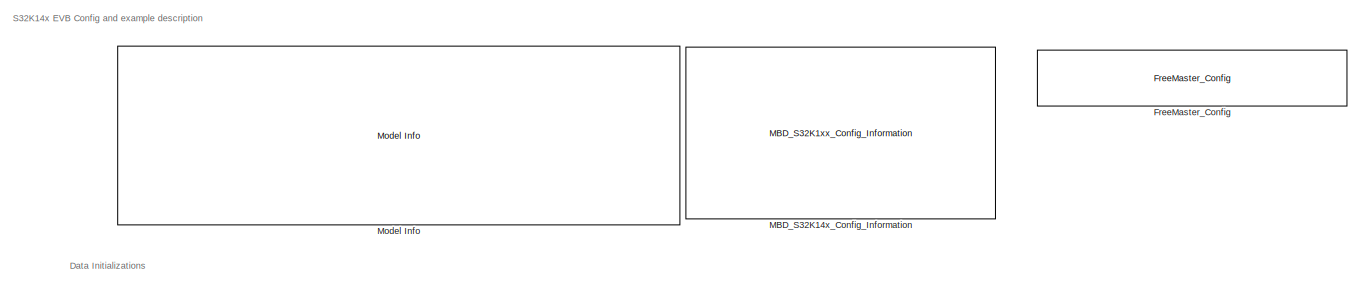
[diagram: root canvas - part 1/11, top center region]
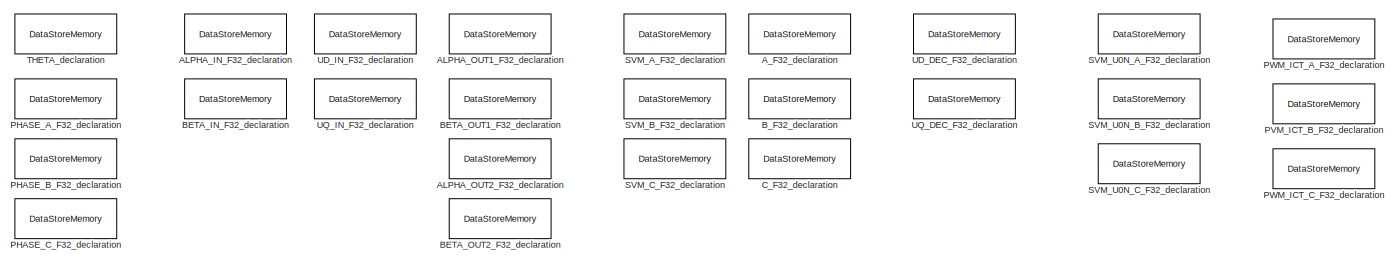
[diagram: root canvas - part 2/11, top center region]
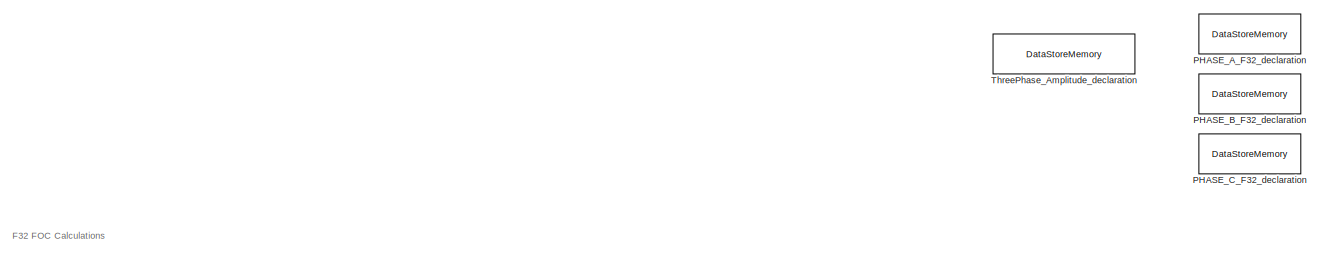
[diagram: root canvas - part 3/11, top left region]
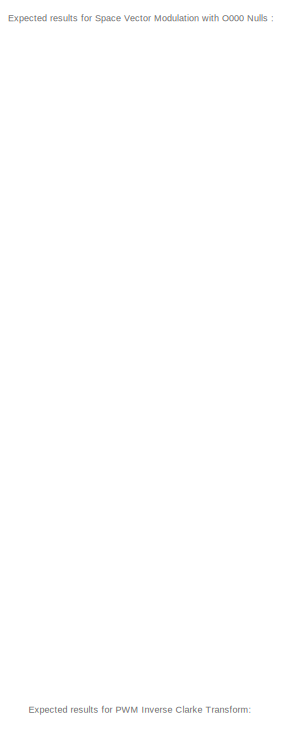
[diagram: root canvas - part 4/11, middle right region]
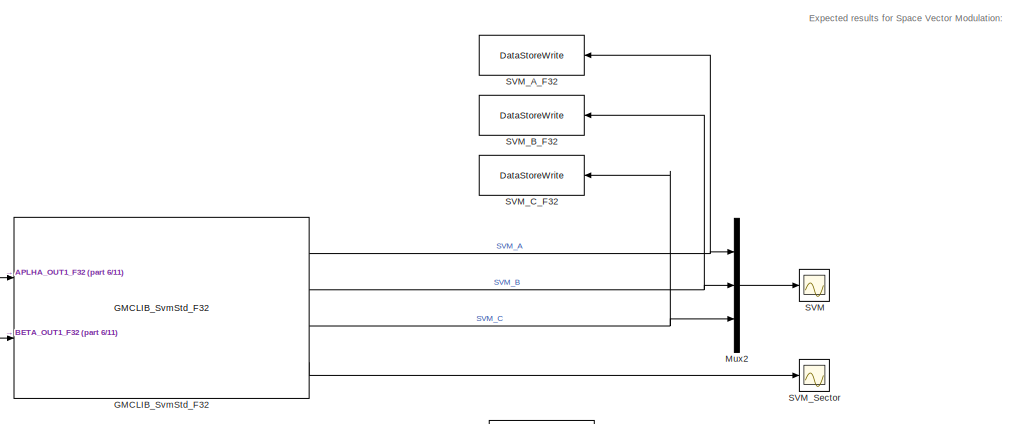
[diagram: root canvas - part 5/11, central region]
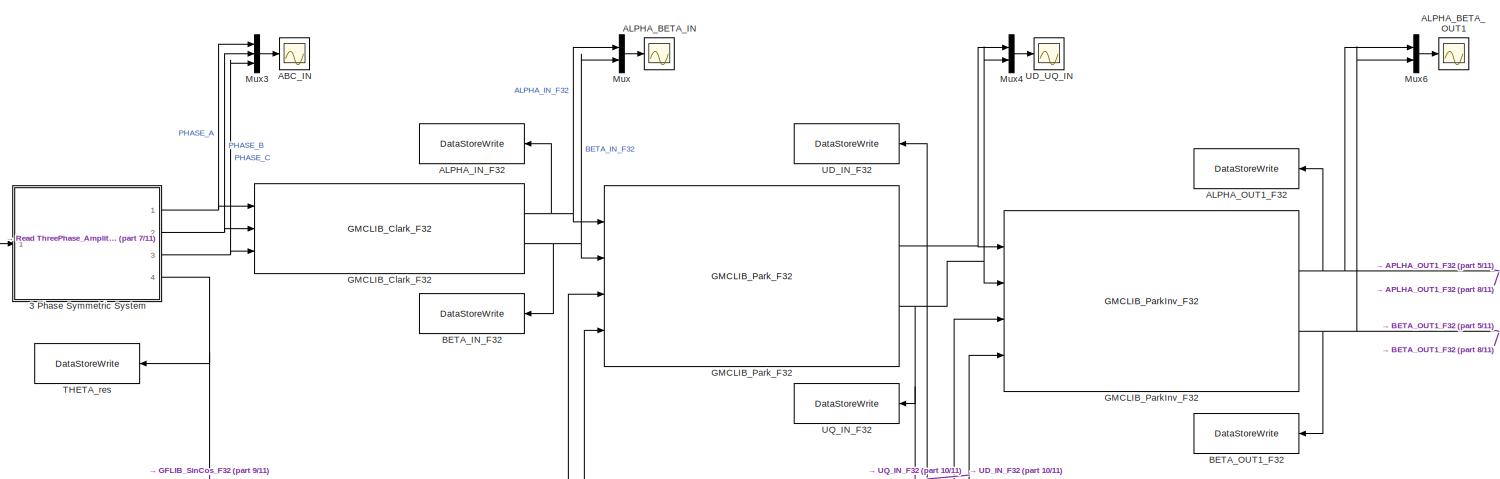
[diagram: root canvas - part 6/11, middle left region]
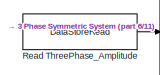
[diagram: root canvas - part 7/11, middle left region]
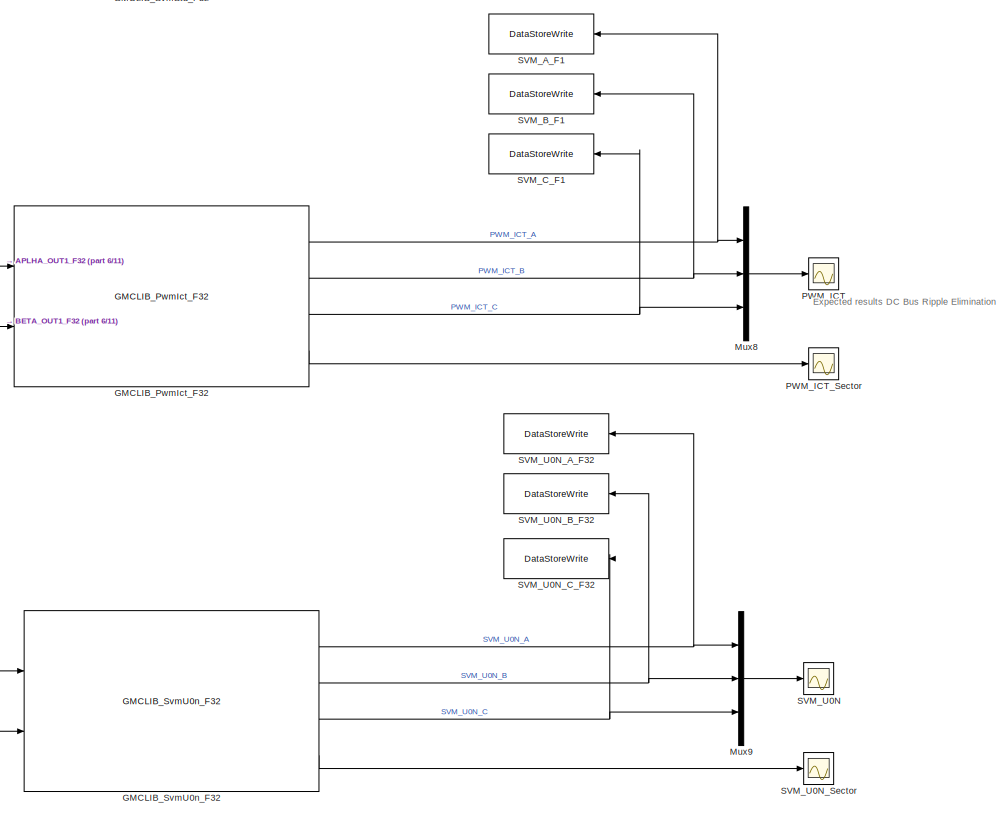
[diagram: root canvas - part 8/11, central region]
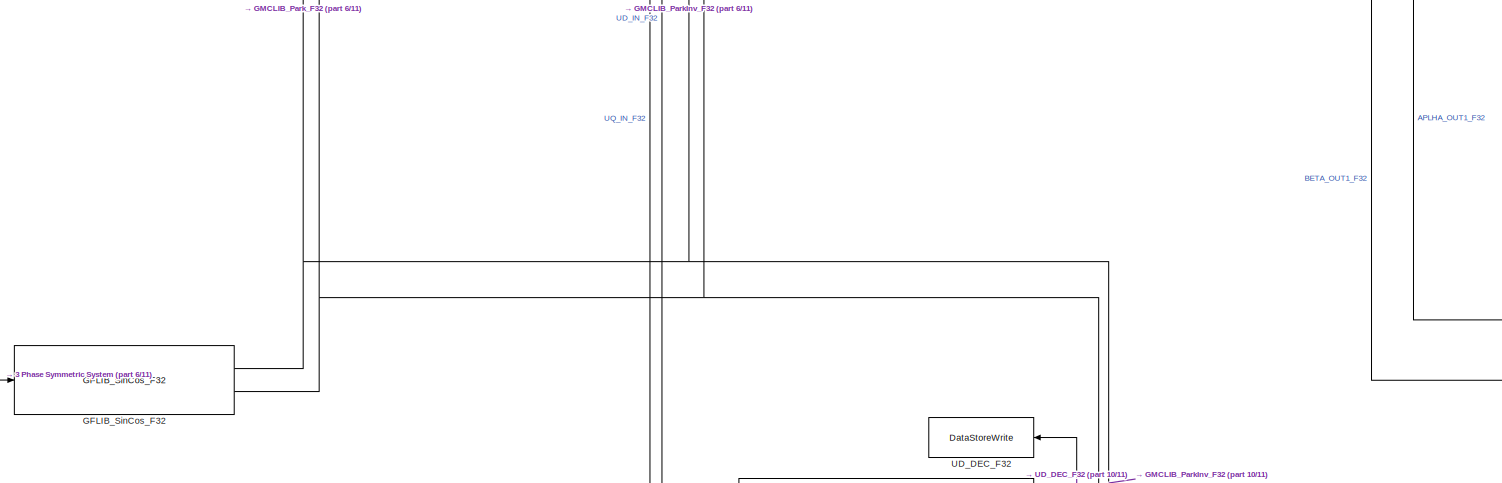
[diagram: root canvas - part 9/11, middle left region]
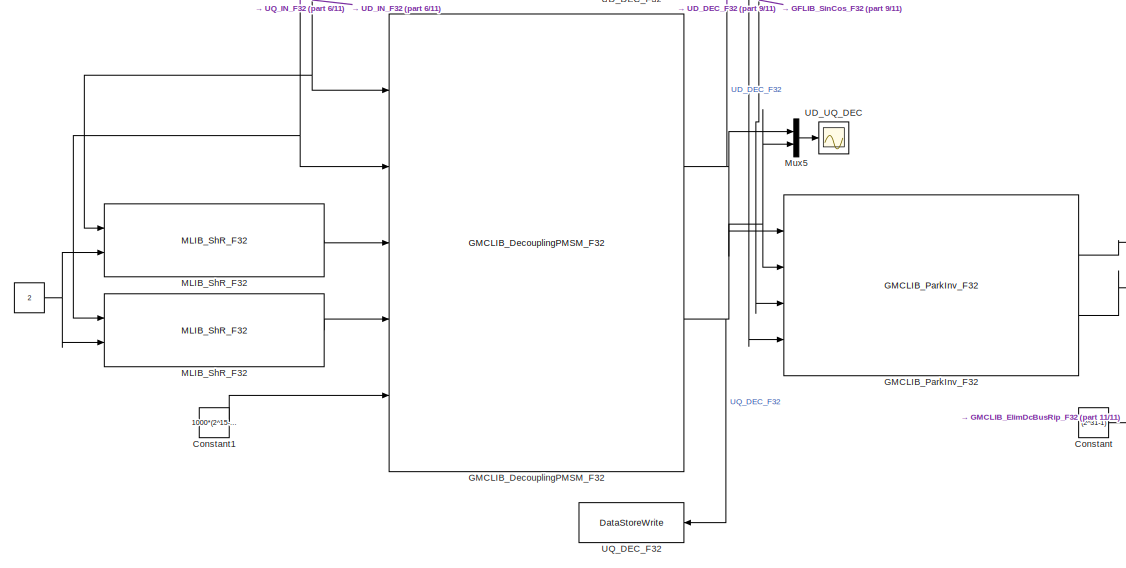
[diagram: root canvas - part 10/11, bottom center region]
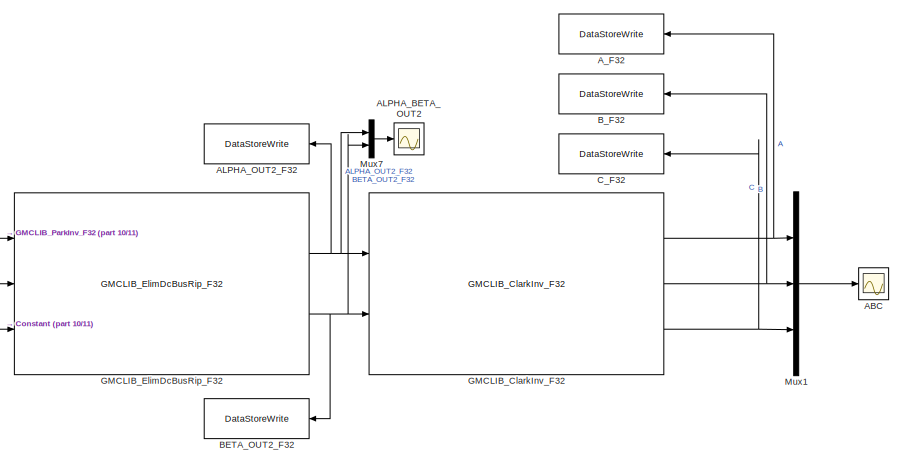
[diagram: root canvas - part 11/11, bottom center region]
MODEL ammclib_gmclib_foc_F32_s32k14x
KIND model
CONFIG InitFcn = mbd_s32k_consistency_checks(bdroot(gcs));
BLOCK [Constant]  
  OutDataTypeStr = Inherit: Inherit via back propagation
  SID = 1072
  Value = 2
BLOCK [DataStoreRead]  Read ThreePhase_Amplitude
  DataStoreName = ThreePhase_Amplitude
  Ports = [0, 1]
  SID = 989
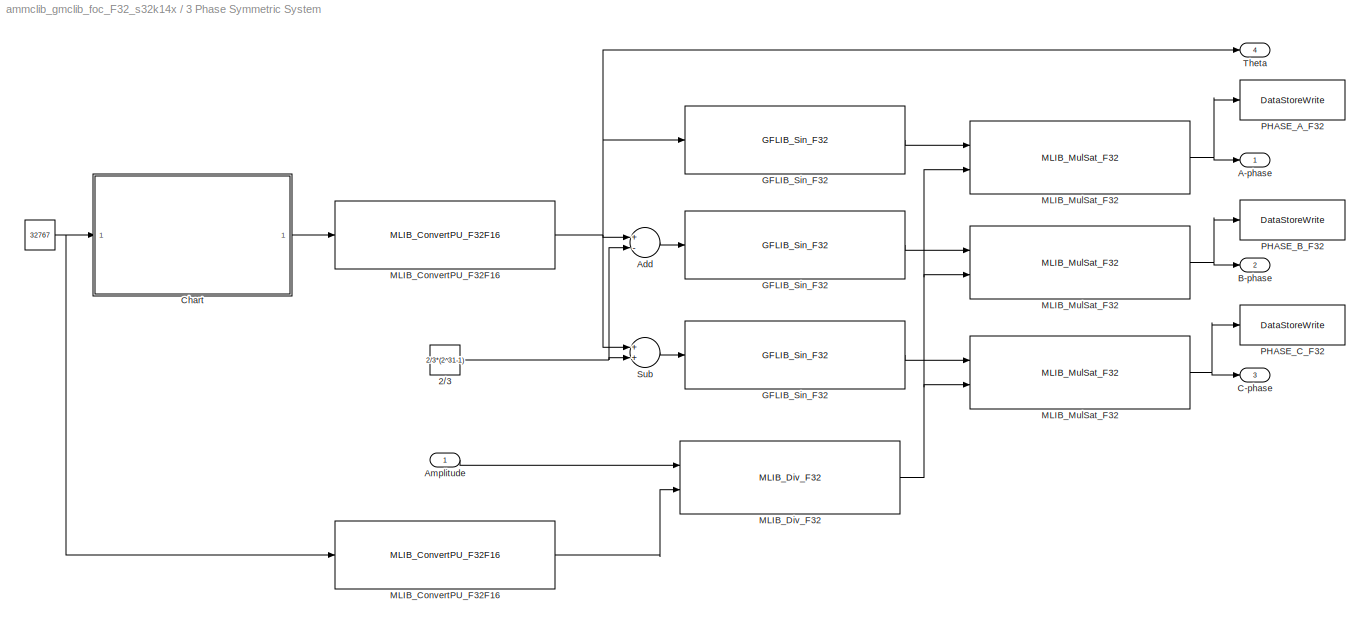
BLOCK [SubSystem] 3 Phase Symmetric System
  Ports = [1, 4]
  RequestExecContextInheritance = off
  SID = 990
  Variant = off
BLOCK [Constant] 3 Phase Symmetric System/ 
  OutDataTypeStr = int16
  SID = 1017
  Value = 32767
BLOCK [Constant] 3 Phase Symmetric System/2//3
  OutDataTypeStr = int32
  SID = 999
  Value = 2/3*(2^31-1)
BLOCK [Outport] 3 Phase Symmetric System/A-phase
  IconDisplay = Port number
  SID = 994
BLOCK [Sum] 3 Phase Symmetric System/Add
  InputSameDT = off
  Inputs = +-
  OutDataTypeStr = Inherit: Inherit via internal rule
  Ports = [2, 1]
  SID = 996
  SaturateOnIntegerOverflow = off
BLOCK [Inport] 3 Phase Symmetric System/Amplitude 
  IconDisplay = Port number
  SID = 991
BLOCK [Outport] 3 Phase Symmetric System/B-phase
  IconDisplay = Port number
  Port = 2
  SID = 995
BLOCK [Outport] 3 Phase Symmetric System/C-phase
  IconDisplay = Port number
  Port = 3
  SID = 997
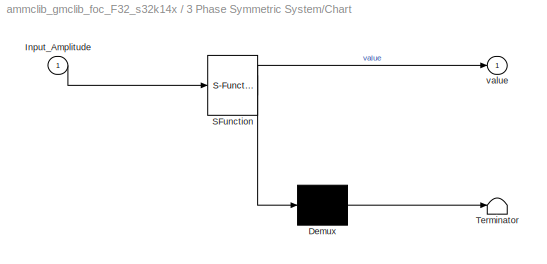
BLOCK [SubSystem] 3 Phase Symmetric System/Chart
  ErrorFcn = Stateflow.Translate.translate
  PermitHierarchicalResolution = ExplicitOnly
  Ports = [1, 1]
  RequestExecContextInheritance = off
  SFBlockType = Chart
  SID = 992
  TreatAsAtomicUnit = on
  Variant = off
BLOCK [Demux] 3 Phase Symmetric System/Chart/ Demux 
  Outputs = 1
  Ports = [1, 1]
  SID = 992::32
BLOCK [S-Function] 3 Phase Symmetric System/Chart/ SFunction 
  EnableBusSupport = on
  FunctionName = sf_sfun
  PortCounts = [1 2]
  Ports = [1, 2]
  SFcnIsStateOwnerBlock = off
  SFunctionDeploymentMode = off
  SID = 992::31
  Tag = Stateflow S-Function ammclib_gmclib_foc_F32_s32k14x 4
BLOCK [Terminator] 3 Phase Symmetric System/Chart/ Terminator 
  SID = 992::33
BLOCK [Inport] 3 Phase Symmetric System/Chart/Input_Amplitude
  IconDisplay = Port number
  SID = 992::30
BLOCK [Outport] 3 Phase Symmetric System/Chart/value
  IconDisplay = Port number
  SID = 992::5
BLOCK [Reference] 3 Phase Symmetric System/GFLIB_Sin_F32  REF=ammclib_bam_s32k14x/GFLIB/bam_f32/GFLIB_Sin_F32  (lib defined in mdl_f341c9dd7fd9)
  Ports = [1, 1]
  SID = 1012
  SourceBlock = ammclib_bam_s32k14x/GFLIB/bam_f32/GFLIB_Sin_F32
  SourceType = GFLIB_Sin_F32
BLOCK [Reference] 3 Phase Symmetric System/GFLIB_Sin_F32   REF=ammclib_bam_s32k14x/GFLIB/bam_f32/GFLIB_Sin_F32  (lib defined in mdl_f341c9dd7fd9)
  Ports = [1, 1]
  SID = 1021
  SourceBlock = ammclib_bam_s32k14x/GFLIB/bam_f32/GFLIB_Sin_F32
  SourceType = GFLIB_Sin_F32
BLOCK [Reference] 3 Phase Symmetric System/GFLIB_Sin_F32    REF=ammclib_bam_s32k14x/GFLIB/bam_f32/GFLIB_Sin_F32  (lib defined in mdl_f341c9dd7fd9)
  Ports = [1, 1]
  SID = 1022
  SourceBlock = ammclib_bam_s32k14x/GFLIB/bam_f32/GFLIB_Sin_F32
  SourceType = GFLIB_Sin_F32
BLOCK [Reference] 3 Phase Symmetric System/MLIB_ConvertPU_F32F16  REF=ammclib_bam_s32k14x/MLIB/bam_f32/MLIB_ConvertPU_F32F16  (lib defined in mdl_f341c9dd7fd9)
  Ports = [1, 1]
  SID = 1129
  SourceBlock = ammclib_bam_s32k14x/MLIB/bam_f32/MLIB_ConvertPU_F32F16
  SourceType = MLIB_ConvertPU_F32
BLOCK [Reference] 3 Phase Symmetric System/MLIB_ConvertPU_F32F16      REF=ammclib_bam_s32k14x/MLIB/bam_f32/MLIB_ConvertPU_F32F16  (lib defined in mdl_f341c9dd7fd9)
  Ports = [1, 1]
  SID = 1132
  SourceBlock = ammclib_bam_s32k14x/MLIB/bam_f32/MLIB_ConvertPU_F32F16
  SourceType = MLIB_ConvertPU_F32
BLOCK [Reference] 3 Phase Symmetric System/MLIB_Div_F32  REF=ammclib_bam_s32k14x/MLIB/bam_f32/MLIB_Div_F32  (lib defined in mdl_f341c9dd7fd9)
  Ports = [2, 1]
  SID = 1028
  SourceBlock = ammclib_bam_s32k14x/MLIB/bam_f32/MLIB_Div_F32
  SourceType = MLIB_Div_F32
BLOCK [Reference] 3 Phase Symmetric System/MLIB_MulSat_F32  REF=ammclib_bam_s32k14x/MLIB/bam_f32/MLIB_MulSat_F32  (lib defined in mdl_f341c9dd7fd9)
  Ports = [2, 1]
  SID = 1031
  SourceBlock = ammclib_bam_s32k14x/MLIB/bam_f32/MLIB_MulSat_F32
  SourceType = MLIB_MulSat_F32
BLOCK [Reference] 3 Phase Symmetric System/MLIB_MulSat_F32   REF=ammclib_bam_s32k14x/MLIB/bam_f32/MLIB_MulSat_F32  (lib defined in mdl_f341c9dd7fd9)
  Ports = [2, 1]
  SID = 1033
  SourceBlock = ammclib_bam_s32k14x/MLIB/bam_f32/MLIB_MulSat_F32
  SourceType = MLIB_MulSat_F32
BLOCK [Reference] 3 Phase Symmetric System/MLIB_MulSat_F32    REF=ammclib_bam_s32k14x/MLIB/bam_f32/MLIB_MulSat_F32  (lib defined in mdl_f341c9dd7fd9)
  Ports = [2, 1]
  SID = 1034
  SourceBlock = ammclib_bam_s32k14x/MLIB/bam_f32/MLIB_MulSat_F32
  SourceType = MLIB_MulSat_F32
BLOCK [DataStoreWrite] 3 Phase Symmetric System/PHASE_A_F32
  DataStoreName = PHASE_A_F32
  Ports = [1]
  SID = 1077
BLOCK [DataStoreWrite] 3 Phase Symmetric System/PHASE_B_F32
  DataStoreName = PHASE_B_F32
  Ports = [1]
  SID = 1078
BLOCK [DataStoreWrite] 3 Phase Symmetric System/PHASE_C_F32
  DataStoreName = PHASE_C_F32
  Ports = [1]
  SID = 1079
BLOCK [Sum] 3 Phase Symmetric System/Sub
  InputSameDT = off
  OutDataTypeStr = Inherit: Inherit via internal rule
  Ports = [2, 1]
  SID = 998
  SaturateOnIntegerOverflow = off
BLOCK [Outport] 3 Phase Symmetric System/Theta
  IconDisplay = Port number
  Port = 4
  SID = 1049
BLOCK [Scope] ABC
  NumInputPorts = 1
  Ports = [1]
  SID = 1104
  ScopeSpecificationString = Simulink.scopes.TimeScopeBlockCfg('CurrentConfiguration', extmgr.ConfigurationSet(extmgr.Configuration('Core','General UI',true),extmgr.Configuration('Core','Source UI',true),extmgr.Configuration('Sources','WiredSimulink',true),extmgr.Configuration('Visuals','Time Domain',true,'SerializedDisplays',{struct('MinYLimReal','-2684354559.875','MaxYLimReal','2684354558.875','YLabelReal','','MinYLimMag','...<+1385ch>
BLOCK [Scope] ABC_IN
  NumInputPorts = 1
  Ports = [1]
  SID = 1119
  ScopeSpecificationString = Simulink.scopes.TimeScopeBlockCfg('CurrentConfiguration', extmgr.ConfigurationSet(extmgr.Configuration('Core','General UI',true),extmgr.Configuration('Core','Source UI',true),extmgr.Configuration('Sources','WiredSimulink',true,'DataLoggingVariableName','ScopeData4'),extmgr.Configuration('Visuals','Time Domain',true,'SerializedDisplays',{struct('MinYLimReal','-1637498879.875','MaxYLimReal','1637498...<+1442ch>
BLOCK [Scope] ALPHA_BETA_IN
  NumInputPorts = 1
  Ports = [1]
  SID = 1117
  ScopeSpecificationString = Simulink.scopes.TimeScopeBlockCfg('CurrentConfiguration', extmgr.ConfigurationSet(extmgr.Configuration('Core','General UI',true),extmgr.Configuration('Core','Source UI',true),extmgr.Configuration('Sources','WiredSimulink',true,'DataLoggingVariableName','ScopeData1'),extmgr.Configuration('Visuals','Time Domain',true,'SerializedDisplays',{struct('MinYLimReal','-1637498879.875','MaxYLimReal','1637498...<+1441ch>
BLOCK [Scope] ALPHA_BETA_OUT1
  NumInputPorts = 1
  Ports = [1]
  SID = 1126
  ScopeSpecificationString = Simulink.scopes.TimeScopeBlockCfg('CurrentConfiguration', extmgr.ConfigurationSet(extmgr.Configuration('Core','General UI',true),extmgr.Configuration('Core','Source UI',true),extmgr.Configuration('Sources','WiredSimulink',true,'DataLoggingVariableName','ScopeData7'),extmgr.Configuration('Visuals','Time Domain',true,'SerializedDisplays',{struct('MinYLimReal','-1637508406.5','MaxYLimReal','163750729...<+1433ch>
BLOCK [Scope] ALPHA_BETA_OUT2
  NumInputPorts = 1
  Ports = [1]
  SID = 1127
  ScopeSpecificationString = Simulink.scopes.TimeScopeBlockCfg('CurrentConfiguration', extmgr.ConfigurationSet(extmgr.Configuration('Core','General UI',true),extmgr.Configuration('Core','Source UI',true),extmgr.Configuration('Sources','WiredSimulink',true,'DataLoggingVariableName','ScopeData8'),extmgr.Configuration('Visuals','Time Domain',true,'SerializedDisplays',{struct('MinYLimReal','-2684354559.875','MaxYLimReal','2684354...<+1445ch>
BLOCK [DataStoreWrite] ALPHA_IN_F32
  DataStoreName = ALPHA_IN_F32
  Ports = [1]
  SID = 781
BLOCK [DataStoreMemory] ALPHA_IN_F32_declaration
  DataStoreName = ALPHA_IN_F32
  OutDataTypeStr = int32
  Priority = 2
  ReadBeforeWriteMsg = warning
  SID = 1080
  ShowAdditionalParam = off
  WriteAfterReadMsg = warning
  WriteAfterWriteMsg = warning
BLOCK [DataStoreWrite] ALPHA_OUT1_F32
  DataStoreName = ALPHA_OUT1_F32
  Ports = [1]
  SID = 1089
BLOCK [DataStoreMemory] ALPHA_OUT1_F32_declaration
  DataStoreName = ALPHA_OUT1_F32
  OutDataTypeStr = int32
  Priority = 2
  ReadBeforeWriteMsg = warning
  SID = 1087
  ShowAdditionalParam = off
  WriteAfterReadMsg = warning
  WriteAfterWriteMsg = warning
BLOCK [DataStoreWrite] ALPHA_OUT2_F32
  DataStoreName = ALPHA_OUT2_F32
  Ports = [1]
  SID = 1102
BLOCK [DataStoreMemory] ALPHA_OUT2_F32_declaration
  DataStoreName = ALPHA_OUT2_F32
  OutDataTypeStr = int32
  Priority = 2
  ReadBeforeWriteMsg = warning
  SID = 1099
  ShowAdditionalParam = off
  WriteAfterReadMsg = warning
  WriteAfterWriteMsg = warning
BLOCK [DataStoreWrite] A_F32
  DataStoreName = A_F32
  Ports = [1]
  SID = 1108
BLOCK [DataStoreMemory] A_F32_declaration
  DataStoreName = A_F32
  OutDataTypeStr = int32
  Priority = 2
  ReadBeforeWriteMsg = warning
  SID = 1105
  ShowAdditionalParam = off
  WriteAfterReadMsg = warning
  WriteAfterWriteMsg = warning
BLOCK [DataStoreWrite] BETA_IN_F32
  DataStoreName = BETA_IN_F32
  Ports = [1]
  SID = 1082
BLOCK [DataStoreMemory] BETA_IN_F32_declaration
  DataStoreName = BETA_IN_F32
  OutDataTypeStr = int32
  Priority = 2
  ReadBeforeWriteMsg = warning
  SID = 1081
  ShowAdditionalParam = off
  WriteAfterReadMsg = warning
  WriteAfterWriteMsg = warning
BLOCK [DataStoreWrite] BETA_OUT1_F32
  DataStoreName = BETA_OUT1_F32
  Ports = [1]
  SID = 1090
BLOCK [DataStoreMemory] BETA_OUT1_F32_declaration
  DataStoreName = BETA_OUT1_F32
  OutDataTypeStr = int32
  Priority = 2
  ReadBeforeWriteMsg = warning
  SID = 1088
  ShowAdditionalParam = off
  WriteAfterReadMsg = warning
  WriteAfterWriteMsg = warning
BLOCK [DataStoreWrite] BETA_OUT2_F32
  DataStoreName = BETA_OUT2_F32
  Ports = [1]
  SID = 1101
BLOCK [DataStoreMemory] BETA_OUT2_F32_declaration
  DataStoreName = BETA_OUT2_F32
  OutDataTypeStr = int32
  Priority = 2
  ReadBeforeWriteMsg = warning
  SID = 1100
  ShowAdditionalParam = off
  WriteAfterReadMsg = warning
  WriteAfterWriteMsg = warning
BLOCK [DataStoreWrite] B_F32
  DataStoreName = B_F32
  Ports = [1]
  SID = 1109
BLOCK [DataStoreMemory] B_F32_declaration
  DataStoreName = B_F32
  OutDataTypeStr = int32
  Priority = 2
  ReadBeforeWriteMsg = warning
  SID = 1106
  ShowAdditionalParam = off
  WriteAfterReadMsg = warning
  WriteAfterWriteMsg = warning
BLOCK [DataStoreWrite] C_F32
  DataStoreName = C_F32
  Ports = [1]
  SID = 1110
BLOCK [DataStoreMemory] C_F32_declaration
  DataStoreName = C_F32
  OutDataTypeStr = int32
  Priority = 2
  ReadBeforeWriteMsg = warning
  SID = 1107
  ShowAdditionalParam = off
  WriteAfterReadMsg = warning
  WriteAfterWriteMsg = warning
BLOCK [Constant] Constant
  OutDataTypeStr = Inherit: Inherit via back propagation
  SID = 1060
  Value = (2^31-1)
BLOCK [Constant] Constant1
  OutDataTypeStr = Inherit: Inherit via back propagation
  SID = 1066
  Value = 1000*(2^15-1)
BLOCK [Reference] FreeMaster_Config  REF=mbd_s32k1xx_ec_toolbox/Utility Blocks/FreeMaster_Config
  Ports = []
  SID = 564
  SourceBlock = mbd_s32k1xx_ec_toolbox/Utility Blocks/FreeMaster_Config
  SourceType = fm_s32k_config
  baudrate = 115200
  comm_buffer_size = 255
  comm_buffer_size_auto = on
  comm_rqueue_size = 32
  comm_rqueue_size_default = on
  interface = LPUART1
  isr_prio = 1
  max_rec_vars = 8
  max_scope_vars = 8
  mode = Short Interrupt
  rec_buff_size = 1024
  rec_timebase = 0
  rec_timebase_unit = milliseconds
  rxd = PTC6: [LPUART1_RX | Receive]
  show_adv_opts = on
  txd = PTC7: [LPUART1_TX | Transmit]
  use_recorder = on
  use_scope = on
BLOCK [Reference] GFLIB_SinCos_F32  REF=ammclib_bam_s32k14x/GFLIB/bam_f32/GFLIB_SinCos_F32  (lib defined in mdl_f341c9dd7fd9)
  Ports = [1, 2]
  SID = 1052
  SourceBlock = ammclib_bam_s32k14x/GFLIB/bam_f32/GFLIB_SinCos_F32
  SourceType = GFLIB_SinCos_F32
BLOCK [Reference] GMCLIB_ClarkInv_F32  REF=ammclib_bam_s32k14x/GMCLIB/bam_f32/GMCLIB_ClarkInv_F32  (lib defined in mdl_f341c9dd7fd9)
  Ports = [2, 3]
  SID = 1056
  SourceBlock = ammclib_bam_s32k14x/GMCLIB/bam_f32/GMCLIB_ClarkInv_F32
  SourceType = GMCLIB_ClarkInv_F32
BLOCK [Reference] GMCLIB_Clark_F32  REF=ammclib_bam_s32k14x/GMCLIB/bam_f32/GMCLIB_Clark_F32  (lib defined in mdl_f341c9dd7fd9)
  Ports = [3, 2]
  SID = 1035
  SourceBlock = ammclib_bam_s32k14x/GMCLIB/bam_f32/GMCLIB_Clark_F32
  SourceType = GMCLIB_Clark_F32
BLOCK [Reference] GMCLIB_DecouplingPMSM_F32  REF=ammclib_bam_s32k14x/GMCLIB/bam_f32/GMCLIB_DecouplingPMSM_F32  (lib defined in mdl_f341c9dd7fd9)
  Ports = [5, 2]
  SID = 1065
  SourceBlock = ammclib_bam_s32k14x/GMCLIB/bam_f32/GMCLIB_DecouplingPMSM_F32
  SourceType = GMCLIB_DecouplingPMSM_F32
  f32Kd = 0.625*(2^31-1)
  f32Kq = 0.625*(2^31-1)
  s16KdShift = 6
  s16KqShift = 5
BLOCK [Reference] GMCLIB_ElimDcBusRip_F32  REF=ammclib_bam_s32k14x/GMCLIB/bam_f32/GMCLIB_ElimDcBusRip_F32  (lib defined in mdl_f341c9dd7fd9)
  Ports = [3, 2]
  SID = 1059
  SourceBlock = ammclib_bam_s32k14x/GMCLIB/bam_f32/GMCLIB_ElimDcBusRip_F32
  SourceType = GMCLIB_ElimDcBusRip_F32
  f32ModIndex = 0.866025403784439*(2^31-1)
BLOCK [Reference] GMCLIB_ParkInv_F32  REF=ammclib_bam_s32k14x/GMCLIB/bam_f32/GMCLIB_ParkInv_F32  (lib defined in mdl_f341c9dd7fd9)
  Ports = [4, 2]
  SID = 1053
  SourceBlock = ammclib_bam_s32k14x/GMCLIB/bam_f32/GMCLIB_ParkInv_F32
  SourceType = GMCLIB_ParkInv_F32
BLOCK [Reference] GMCLIB_ParkInv_F32   REF=ammclib_bam_s32k14x/GMCLIB/bam_f32/GMCLIB_ParkInv_F32  (lib defined in mdl_f341c9dd7fd9)
  Ports = [4, 2]
  SID = 1074
  SourceBlock = ammclib_bam_s32k14x/GMCLIB/bam_f32/GMCLIB_ParkInv_F32
  SourceType = GMCLIB_ParkInv_F32
BLOCK [Reference] GMCLIB_Park_F32  REF=ammclib_bam_s32k14x/GMCLIB/bam_f32/GMCLIB_Park_F32  (lib defined in mdl_f341c9dd7fd9)
  Ports = [4, 2]
  SID = 1045
  SourceBlock = ammclib_bam_s32k14x/GMCLIB/bam_f32/GMCLIB_Park_F32
  SourceType = GMCLIB_Park_F32
BLOCK [Reference] GMCLIB_PwmIct_F32  REF=ammclib_bam_s32k14x/GMCLIB/bam_f32/GMCLIB_PwmIct_F32  (lib defined in mdl_f341c9dd7fd9)
  Ports = [2, 4]
  SID = 1133
  SourceBlock = ammclib_bam_s32k14x/GMCLIB/bam_f32/GMCLIB_PwmIct_F32
  SourceType = GMCLIB_PwmIct_F32
BLOCK [Reference] GMCLIB_SvmStd_F32  REF=ammclib_bam_s32k14x/GMCLIB/bam_f32/GMCLIB_SvmStd_F32  (lib defined in mdl_f341c9dd7fd9)
  Ports = [2, 4]
  SID = 1061
  SourceBlock = ammclib_bam_s32k14x/GMCLIB/bam_f32/GMCLIB_SvmStd_F32
  SourceType = GMCLIB_SvmStd_F32
BLOCK [Reference] GMCLIB_SvmU0n_F32  REF=ammclib_bam_s32k14x/GMCLIB/bam_f32/GMCLIB_SvmU0n_F32  (lib defined in mdl_f341c9dd7fd9)
  Ports = [2, 4]
  SID = 1134
  SourceBlock = ammclib_bam_s32k14x/GMCLIB/bam_f32/GMCLIB_SvmU0n_F32
  SourceType = GMCLIB_SvmU0n_F32
BLOCK [Reference] MBD_S32K14x_Config_Information  REF=mbd_s32k1xx_ec_toolbox/MBD_S32K1xx_Config_Information
  ADC_PcrCheckEnDis = on
  AMMCLIB_PcrCheckEnDis = on
  CMP_PcrCheckEnDis = on
  CSEc_PcrCheckEnDis = on
  ConfigParams_PcrCheckEnDis = on
  FM_PcrCheckEnDis = on
  FTM_Dual_Edge_Inputs_PcrCheckEnDis = on
  FTM_Hall_Sensor_Inputs_PcrCheckEnDis = on
  FTM_Input_Edge_Inputs_PcrCheckEnDis = on
  FTM_PWM_PcrCheckEnDis = on
  FTM_Quadrature_Inputs_PcrCheckEnDis = on
  FlexCAN_PcrCheckEnDis = on
  FlexIO_PcrCheckEnDis = on
  GPIO_InputPcrCheckEnDis = on
  GPIO_OutputPcrCheckEnDis = on
  LIN_PcrCheckEnDis = on
  LPI2C_PcrCheckEnDis = on
  LPSPI_PcrCheckEnDis = on
  LPTMR_PcrCheckEnDis = on
  LPUART_PcrCheckEnDis = on
  ModelRef_PcrCheckEnDis = on
  PDB0_PcrCheckEnDis = on
  PIT_PcrCheckEnDis = on
  Ports = []
  Priority = 0
  Profile_PcrCheckEnDis = on
  RTC_PcrCheckEnDis = on
  SBC_PcrCheckEnDis = on
  SID = 1
  SourceBlock = mbd_s32k1xx_ec_toolbox/MBD_S32K1xx_Config_Information
  SourceType = MBDTBX_EC_S32K
  WDOG_PcrCheckEnDis = on
  config_params = []
  disp_str = Target : S32K142-16KB_SRAM\nPackage : 100-pin\nSystem clock : 80 MHz\nXTAL clock : External 8 MHz\nCompiler : GCC\nTarget Type : FLASH\nDownload Code after build : (OpenSDA: E)\nStep Tick Interrupt Priority : 15
  ds_import_enable = on
  eDMA_PcrCheckEnDis = on
  gcc_target_assemble_opts = -mcpu=cortex-m4 -mthumb -mfloat-abi=hard -mfpu=fpv4-sp-d16 -g
  gcc_target_compile_opts = -mcpu=cortex-m4 -mthumb -mfloat-abi=hard -mfpu=fpv4-sp-d16 -O1 -g -gstrict-dwarf
  gcc_target_default_lcf = on
  gcc_target_link_opts = -mcpu=cortex-m4 -mthumb -mfloat-abi=hard -mfpu=fpv4-sp-d16
  gcc_target_user_lcf = S32K144_64_flash.ld
  ghs_target_assemble_opts = -cpu=cortexm4f -fpu=vfpv4_d16
  ghs_target_compile_opts = -cpu=cortexm4f -thumb -DARM_MATH_CM4 -fpu=vfpv4_d16 -fsingle -Ogeneral -Wundef -Wimplicit-int -Wshadow -Wtrigraphs --no_commons --gnu_asm -gnu99 -gdwarf-2 -G
  ghs_target_default_lcf = off
  ghs_target_link_opts = -cpu=cortexm4f -thumb -fpu=vfpv4_d16
  ghs_target_user_lcf = S32K144_64_flash.ld
  iar_target_assemble_opts = --cpu Cortex-M4F --thumb --fpu VFPv4_sp
  iar_target_compile_opts = --cpu=Cortex-M4F --thumb --fpu=VFPv4_sp -Ol -e --debug --dlib_config normal
  iar_target_default_lcf = off
  iar_target_link_opts = --no_exceptions --vfe --inline
  iar_target_user_lcf = S32K144_64_flash.icf
  mbdt_ver = 0
  mcu_steptick_prio = 15
  mcu_steptick_timer = LPIT Channel 0
  mcu_system_clock_freq = 80
  mcu_target_name = S32K144
  mcu_target_package = 100-LQFP
  mcu_target_sram_size = 64KB
  mcu_xtal_freq = External 8
  pil_download_enable = off
  pil_download_rate = 57600
  pil_opensda_drive = Custom
  pil_opensda_drive_custom = D
  pil_uart_instance = 0
  pil_uart_rx = PTA2: [LPUART0_RX | Receive]
  pil_uart_tx = PTA3: [LPUART0_TX | Transmit]
  rbl_com_port = Custom
  rbl_com_port_custom = COM1
  rbl_download_enable = on
  rbl_download_interface = OpenSDA
  rbl_restart_request = off
  rbl_start_delay = 5000000
  target_compiler = GCC
  target_memory = FLASH
BLOCK [Reference] MLIB_ShR_F32  REF=ammclib_bam_s32k14x/MLIB/bam_f32/MLIB_ShR_F32  (lib defined in mdl_f341c9dd7fd9)
  Ports = [2, 1]
  SID = 1071
  SourceBlock = ammclib_bam_s32k14x/MLIB/bam_f32/MLIB_ShR_F32
  SourceType = MLIB_ShR_F32
BLOCK [Reference] MLIB_ShR_F32   REF=ammclib_bam_s32k14x/MLIB/bam_f32/MLIB_ShR_F32  (lib defined in mdl_f341c9dd7fd9)
  Ports = [2, 1]
  SID = 1073
  SourceBlock = ammclib_bam_s32k14x/MLIB/bam_f32/MLIB_ShR_F32
  SourceType = MLIB_ShR_F32
BLOCK [Reference] Model Info  REF=simulink/Model-Wide\nUtilities/Model Info
  DisplayStringWithTags = Model Name: %<ModelName>\n\nDescription: %<Description>
  Frame = off
  HorizontalTextAlignment = Left
  LeftAlignmentValue = 0.02
  MaskDisplayString = Model Name: ammclib_gmclib_foc_F32_s32k14x\\n\\nDescription: This model tests the AMMCLIB GMCLIB F32 blocks\\n\\nValidation:\\n- Run the model in Simulation and check the results\\n- Open Freemaster (ammclib_gflib_foc_F32_s32k14x.pmp) and compare the HW results against the Simulated ones
  Ports = []
  SID = 524
  SourceBlock = simulink/Model-Wide\nUtilities/Model Info
  SourceProductBaseCode = SL
  SourceProductName = Simulink
  SourceType = CMBlock
BLOCK [Mux] Mux
  DisplayOption = bar
  Inputs = 2
  Ports = [2, 1]
  SID = 1118
BLOCK [Mux] Mux1
  DisplayOption = bar
  Inputs = 3
  Ports = [3, 1]
  SID = 1103
BLOCK [Mux] Mux2
  DisplayOption = bar
  Inputs = 3
  Ports = [3, 1]
  SID = 1062
BLOCK [Mux] Mux3
  DisplayOption = bar
  Inputs = 3
  Ports = [3, 1]
  SID = 1120
BLOCK [Mux] Mux4
  DisplayOption = bar
  Inputs = 2
  Ports = [2, 1]
  SID = 1122
BLOCK [Mux] Mux5
  DisplayOption = bar
  Inputs = 2
  Ports = [2, 1]
  SID = 1123
BLOCK [Mux] Mux6
  DisplayOption = bar
  Inputs = 2
  Ports = [2, 1]
  SID = 1125
BLOCK [Mux] Mux7
  DisplayOption = bar
  Inputs = 2
  Ports = [2, 1]
  SID = 1128
BLOCK [Mux] Mux8
  DisplayOption = bar
  Inputs = 3
  Ports = [3, 1]
  SID = 1141
BLOCK [Mux] Mux9
  DisplayOption = bar
  Inputs = 3
  Ports = [3, 1]
  SID = 1144
BLOCK [DataStoreMemory] PHASE_A_F32_declaration
  DataStoreName = PHASE_A_F32
  OutDataTypeStr = int32
  Priority = 2
  ReadBeforeWriteMsg = warning
  SID = 778
  ShowAdditionalParam = off
  WriteAfterReadMsg = warning
  WriteAfterWriteMsg = warning
BLOCK [DataStoreMemory] PHASE_B_F32_declaration
  DataStoreName = PHASE_B_F32
  OutDataTypeStr = int32
  Priority = 2
  ReadBeforeWriteMsg = warning
  SID = 1075
  ShowAdditionalParam = off
  WriteAfterReadMsg = warning
  WriteAfterWriteMsg = warning
BLOCK [DataStoreMemory] PHASE_C_F32_declaration
  DataStoreName = PHASE_C_F32
  OutDataTypeStr = int32
  Priority = 2
  ReadBeforeWriteMsg = warning
  SID = 1076
  ShowAdditionalParam = off
  WriteAfterReadMsg = warning
  WriteAfterWriteMsg = warning
BLOCK [DataStoreMemory] PVM_ICT_B_F32_declaration
  DataStoreName = PWM_ICT_B_F32
  OutDataTypeStr = int32
  Priority = 2
  ReadBeforeWriteMsg = warning
  SID = 1151
  ShowAdditionalParam = off
  WriteAfterReadMsg = warning
  WriteAfterWriteMsg = warning
BLOCK [Scope] PWM_ICT
  NumInputPorts = 1
  Ports = [1]
  SID = 1142
  ScopeSpecificationString = Simulink.scopes.TimeScopeBlockCfg('CurrentConfiguration', extmgr.ConfigurationSet(extmgr.Configuration('Core','General UI',true),extmgr.Configuration('Core','Source UI',true),extmgr.Configuration('Sources','WiredSimulink',true,'DataLoggingVariableName','ScopeData1'),extmgr.Configuration('Visuals','Time Domain',true,'SerializedDisplays',{struct('MinYLimReal','254987620.75','MaxYLimReal','1892495473...<+1432ch>
BLOCK [DataStoreMemory] PWM_ICT_A_F32_declaration
  DataStoreName = PWM_ICT_A_F32
  OutDataTypeStr = int32
  Priority = 2
  ReadBeforeWriteMsg = warning
  SID = 1150
  ShowAdditionalParam = off
  WriteAfterReadMsg = warning
  WriteAfterWriteMsg = warning
BLOCK [DataStoreMemory] PWM_ICT_C_F32_declaration
  DataStoreName = PWM_ICT_C_F32
  OutDataTypeStr = int32
  Priority = 2
  ReadBeforeWriteMsg = warning
  SID = 1152
  ShowAdditionalParam = off
  WriteAfterReadMsg = warning
  WriteAfterWriteMsg = warning
BLOCK [Scope] PWM_ICT_Sector
  NumInputPorts = 1
  Ports = [1]
  SID = 1143
  ScopeSpecificationString = Simulink.scopes.TimeScopeBlockCfg('CurrentConfiguration', extmgr.ConfigurationSet(extmgr.Configuration('Core','General UI',true),extmgr.Configuration('Core','Source UI',true),extmgr.Configuration('Sources','WiredSimulink',true,'DataLoggingVariableName','ScopeData2'),extmgr.Configuration('Visuals','Time Domain',true,'SerializedDisplays',{struct('MinYLimReal','0.375','MaxYLimReal','6.625','YLabelRea...<+1360ch>
BLOCK [Scope] SVM
  NumInputPorts = 1
  Ports = [1]
  SID = 1063
  ScopeSpecificationString = Simulink.scopes.TimeScopeBlockCfg('CurrentConfiguration', extmgr.ConfigurationSet(extmgr.Configuration('Core','General UI',true),extmgr.Configuration('Core','Source UI',true),extmgr.Configuration('Sources','WiredSimulink',true,'DataLoggingVariableName','ScopeData2'),extmgr.Configuration('Visuals','Time Domain',true,'SerializedDisplays',{struct('MinYLimReal','254990903.00000','MaxYLimReal','1892492...<+1444ch>
BLOCK [DataStoreWrite] SVM_A_F1
  DataStoreName = PWM_ICT_A_F32
  Ports = [1]
  SID = 1135
BLOCK [DataStoreWrite] SVM_A_F32
  DataStoreName = SVM_A_F32
  Ports = [1]
  SID = 1096
BLOCK [DataStoreMemory] SVM_A_F32_declaration
  DataStoreName = SVM_A_F32
  OutDataTypeStr = int32
  Priority = 2
  ReadBeforeWriteMsg = warning
  SID = 1091
  ShowAdditionalParam = off
  WriteAfterReadMsg = warning
  WriteAfterWriteMsg = warning
BLOCK [DataStoreWrite] SVM_B_F1
  DataStoreName = PWM_ICT_B_F32
  Ports = [1]
  SID = 1136
BLOCK [DataStoreWrite] SVM_B_F32
  DataStoreName = SVM_B_F32
  Ports = [1]
  SID = 1097
BLOCK [DataStoreMemory] SVM_B_F32_declaration
  DataStoreName = SVM_B_F32
  OutDataTypeStr = int32
  Priority = 2
  ReadBeforeWriteMsg = warning
  SID = 1092
  ShowAdditionalParam = off
  WriteAfterReadMsg = warning
  WriteAfterWriteMsg = warning
BLOCK [DataStoreWrite] SVM_C_F1
  DataStoreName = PWM_ICT_C_F32
  Ports = [1]
  SID = 1137
BLOCK [DataStoreWrite] SVM_C_F32
  DataStoreName = SVM_C_F32
  Ports = [1]
  SID = 1098
BLOCK [DataStoreMemory] SVM_C_F32_declaration
  DataStoreName = SVM_C_F32
  OutDataTypeStr = int32
  Priority = 2
  ReadBeforeWriteMsg = warning
  SID = 1093
  ShowAdditionalParam = off
  WriteAfterReadMsg = warning
  WriteAfterWriteMsg = warning
BLOCK [Scope] SVM_Sector
  NumInputPorts = 1
  Ports = [1]
  SID = 1064
  ScopeSpecificationString = Simulink.scopes.TimeScopeBlockCfg('CurrentConfiguration', extmgr.ConfigurationSet(extmgr.Configuration('Core','General UI',true),extmgr.Configuration('Core','Source UI',true),extmgr.Configuration('Sources','WiredSimulink',true,'DataLoggingVariableName','ScopeData3'),extmgr.Configuration('Visuals','Time Domain',true,'SerializedDisplays',{struct('MinYLimReal','0.375','MaxYLimReal','6.625','YLabelRea...<+1360ch>
BLOCK [Scope] SVM_U0N
  NumInputPorts = 1
  Ports = [1]
  SID = 1145
  ScopeSpecificationString = Simulink.scopes.TimeScopeBlockCfg('CurrentConfiguration', extmgr.ConfigurationSet(extmgr.Configuration('Core','General UI',true),extmgr.Configuration('Core','Source UI',true),extmgr.Configuration('Sources','WiredSimulink',true,'DataLoggingVariableName','ScopeData3'),extmgr.Configuration('Visuals','Time Domain',true,'SerializedDisplays',{struct('MinYLimReal','-163750184.00000','MaxYLimReal','147375...<+1456ch>
BLOCK [DataStoreWrite] SVM_U0N_A_F32
  DataStoreName = SVM_U0N_A_F32
  Ports = [1]
  SID = 1138
BLOCK [DataStoreMemory] SVM_U0N_A_F32_declaration
  DataStoreName = SVM_U0N_A_F32
  OutDataTypeStr = int32
  Priority = 2
  ReadBeforeWriteMsg = warning
  SID = 1147
  ShowAdditionalParam = off
  WriteAfterReadMsg = warning
  WriteAfterWriteMsg = warning
BLOCK [DataStoreWrite] SVM_U0N_B_F32
  DataStoreName = SVM_U0N_B_F32
  Ports = [1]
  SID = 1139
BLOCK [DataStoreMemory] SVM_U0N_B_F32_declaration
  DataStoreName = SVM_U0N_B_F32
  OutDataTypeStr = int32
  Priority = 2
  ReadBeforeWriteMsg = warning
  SID = 1148
  ShowAdditionalParam = off
  WriteAfterReadMsg = warning
  WriteAfterWriteMsg = warning
BLOCK [DataStoreWrite] SVM_U0N_C_F32
  DataStoreName = SVM_U0N_C_F32
  Ports = [1]
  SID = 1140
BLOCK [DataStoreMemory] SVM_U0N_C_F32_declaration
  DataStoreName = SVM_U0N_C_F32
  OutDataTypeStr = int32
  Priority = 2
  ReadBeforeWriteMsg = warning
  SID = 1149
  ShowAdditionalParam = off
  WriteAfterReadMsg = warning
  WriteAfterWriteMsg = warning
BLOCK [Scope] SVM_U0N_Sector
  NumInputPorts = 1
  Ports = [1]
  SID = 1146
  ScopeSpecificationString = Simulink.scopes.TimeScopeBlockCfg('CurrentConfiguration', extmgr.ConfigurationSet(extmgr.Configuration('Core','General UI',true),extmgr.Configuration('Core','Source UI',true),extmgr.Configuration('Sources','WiredSimulink',true,'DataLoggingVariableName','ScopeData4'),extmgr.Configuration('Visuals','Time Domain',true,'SerializedDisplays',{struct('MinYLimReal','0.375','MaxYLimReal','6.625','YLabelRea...<+1360ch>
BLOCK [DataStoreMemory] THETA_declaration
  DataStoreName = THETA_F32
  OutDataTypeStr = int32
  Priority = 2
  ReadBeforeWriteMsg = warning
  SID = 580
  ShowAdditionalParam = off
  WriteAfterReadMsg = warning
  WriteAfterWriteMsg = warning
BLOCK [DataStoreWrite] THETA_res
  DataStoreName = THETA_F32
  Ports = [1]
  SID = 707
BLOCK [DataStoreMemory] ThreePhase_Amplitude_declaration
  DataStoreName = ThreePhase_Amplitude
  InitialValue = 0.61*(2^31-1)
  OutDataTypeStr = int32
  OutMax = (2^31-1)
  OutMin = -(2^31-1)
  Priority = 1
  SID = 988
  ShowAdditionalParam = off
  WriteAfterReadMsg = warning
  WriteAfterWriteMsg = warning
BLOCK [DataStoreWrite] UD_DEC_F32
  DataStoreName = UD_DEC_F32
  Ports = [1]
  SID = 1113
BLOCK [DataStoreMemory] UD_DEC_F32_declaration
  DataStoreName = UD_DEC_F32
  OutDataTypeStr = int32
  Priority = 2
  ReadBeforeWriteMsg = warning
  SID = 1111
  ShowAdditionalParam = off
  WriteAfterReadMsg = warning
  WriteAfterWriteMsg = warning
BLOCK [DataStoreWrite] UD_IN_F32
  DataStoreName = UD_IN_F32
  Ports = [1]
  SID = 1085
BLOCK [DataStoreMemory] UD_IN_F32_declaration
  DataStoreName = UD_IN_F32
  OutDataTypeStr = int32
  Priority = 2
  ReadBeforeWriteMsg = warning
  SID = 1083
  ShowAdditionalParam = off
  WriteAfterReadMsg = warning
  WriteAfterWriteMsg = warning
BLOCK [Scope] UD_UQ_DEC
  NumInputPorts = 1
  Ports = [1]
  SID = 1124
  ScopeSpecificationString = Simulink.scopes.TimeScopeBlockCfg('CurrentConfiguration', extmgr.ConfigurationSet(extmgr.Configuration('Core','General UI',true),extmgr.Configuration('Core','Source UI',true),extmgr.Configuration('Sources','WiredSimulink',true,'DataLoggingVariableName','ScopeData6'),extmgr.Configuration('Visuals','Time Domain',true,'SerializedDisplays',{struct('MinYLimReal','-23365.875','MaxYLimReal','9452.875','Y...<+1396ch>
BLOCK [Scope] UD_UQ_IN
  NumInputPorts = 1
  Ports = [1]
  SID = 1121
  ScopeSpecificationString = Simulink.scopes.TimeScopeBlockCfg('CurrentConfiguration', extmgr.ConfigurationSet(extmgr.Configuration('Core','General UI',true),extmgr.Configuration('Core','Source UI',true),extmgr.Configuration('Sources','WiredSimulink',true,'DataLoggingVariableName','ScopeData5'),extmgr.Configuration('Visuals','Time Domain',true,'SerializedDisplays',{struct('MinYLimReal','-1473758345.75','MaxYLimReal','16375329...<+1430ch>
BLOCK [DataStoreWrite] UQ_DEC_F32
  DataStoreName = UQ_DEC_F32
  Ports = [1]
  SID = 1114
BLOCK [DataStoreMemory] UQ_DEC_F32_declaration
  DataStoreName = UQ_DEC_F32
  OutDataTypeStr = int32
  Priority = 2
  ReadBeforeWriteMsg = warning
  SID = 1112
  ShowAdditionalParam = off
  WriteAfterReadMsg = warning
  WriteAfterWriteMsg = warning
BLOCK [DataStoreWrite] UQ_IN_F32
  DataStoreName = UQ_IN_F32
  Ports = [1]
  SID = 1086
BLOCK [DataStoreMemory] UQ_IN_F32_declaration
  DataStoreName = UQ_IN_F32
  OutDataTypeStr = int32
  Priority = 2
  ReadBeforeWriteMsg = warning
  SID = 1084
  ShowAdditionalParam = off
  WriteAfterReadMsg = warning
  WriteAfterWriteMsg = warning
ANNOTATION (root): \n \n Expected results DC Bus Ripple Elimination \n
ANNOTATION (root): \n \n Expected results for Space Vector Modulation: \n
ANNOTATION (root): \n \n Expected results for PWM Inverse Clarke Transform: \n \n \n
ANNOTATION (root): \n \n Expected results for Space Vector Modulation with O000 Nulls : \n
ANNOTATION (root): Data Initializations
ANNOTATION (root): F32 FOC Calculations
ANNOTATION (root): S32K14x EVB Config and example description
NET  :1 -> MLIB_ShR_F32 :2, MLIB_ShR_F32:2
LINE  Read ThreePhase_Amplitude:1 -> 3 Phase Symmetric System:1
NET 3 Phase Symmetric System/ :1 -> 3 Phase Symmetric System/Chart:1, 3 Phase Symmetric System/MLIB_ConvertPU_F32F16    :1
NET 3 Phase Symmetric System/2//3:1 -> 3 Phase Symmetric System/Add:2, 3 Phase Symmetric System/Sub:2
LINE 3 Phase Symmetric System/Add:1 -> 3 Phase Symmetric System/GFLIB_Sin_F32 :1
LINE 3 Phase Symmetric System/Amplitude :1 -> 3 Phase Symmetric System/MLIB_Div_F32:1
LINE 3 Phase Symmetric System/Chart/ Demux :1 -> 3 Phase Symmetric System/Chart/ Terminator :1
LINE 3 Phase Symmetric System/Chart/ SFunction :1 -> 3 Phase Symmetric System/Chart/ Demux :1
LINE 3 Phase Symmetric System/Chart/ SFunction :2 -> 3 Phase Symmetric System/Chart/value:1
LINE 3 Phase Symmetric System/Chart/Input_Amplitude:1 -> 3 Phase Symmetric System/Chart/ SFunction :1
LINE 3 Phase Symmetric System/Chart:1 -> 3 Phase Symmetric System/MLIB_ConvertPU_F32F16:1
LINE 3 Phase Symmetric System/GFLIB_Sin_F32  :1 -> 3 Phase Symmetric System/MLIB_MulSat_F32  :1
LINE 3 Phase Symmetric System/GFLIB_Sin_F32 :1 -> 3 Phase Symmetric System/MLIB_MulSat_F32 :1
LINE 3 Phase Symmetric System/GFLIB_Sin_F32:1 -> 3 Phase Symmetric System/MLIB_MulSat_F32:1
LINE 3 Phase Symmetric System/MLIB_ConvertPU_F32F16    :1 -> 3 Phase Symmetric System/MLIB_Div_F32:2
NET 3 Phase Symmetric System/MLIB_ConvertPU_F32F16:1 -> 3 Phase Symmetric System/Add:1, 3 Phase Symmetric System/GFLIB_Sin_F32:1, 3 Phase Symmetric System/Sub:1, 3 Phase Symmetric System/Theta:1
NET 3 Phase Symmetric System/MLIB_Div_F32:1 -> 3 Phase Symmetric System/MLIB_MulSat_F32  :2, 3 Phase Symmetric System/MLIB_MulSat_F32 :2, 3 Phase Symmetric System/MLIB_MulSat_F32:2
NET 3 Phase Symmetric System/MLIB_MulSat_F32  :1 -> 3 Phase Symmetric System/C-phase:1, 3 Phase Symmetric System/PHASE_C_F32:1
NET 3 Phase Symmetric System/MLIB_MulSat_F32 :1 -> 3 Phase Symmetric System/B-phase:1, 3 Phase Symmetric System/PHASE_B_F32:1
NET 3 Phase Symmetric System/MLIB_MulSat_F32:1 -> 3 Phase Symmetric System/A-phase:1, 3 Phase Symmetric System/PHASE_A_F32:1
LINE 3 Phase Symmetric System/Sub:1 -> 3 Phase Symmetric System/GFLIB_Sin_F32  :1
NET 3 Phase Symmetric System:1 -> GMCLIB_Clark_F32:1, Mux3:1
NET 3 Phase Symmetric System:2 -> GMCLIB_Clark_F32:2, Mux3:2
NET 3 Phase Symmetric System:3 -> GMCLIB_Clark_F32:3, Mux3:3
NET 3 Phase Symmetric System:4 -> GFLIB_SinCos_F32:1, THETA_res:1
LINE Constant1:1 -> GMCLIB_DecouplingPMSM_F32:5
LINE Constant:1 -> GMCLIB_ElimDcBusRip_F32:3
NET GFLIB_SinCos_F32:1 -> GMCLIB_ParkInv_F32 :3, GMCLIB_ParkInv_F32:3, GMCLIB_Park_F32:3
NET GFLIB_SinCos_F32:2 -> GMCLIB_ParkInv_F32 :4, GMCLIB_ParkInv_F32:4, GMCLIB_Park_F32:4
NET GMCLIB_ClarkInv_F32:1 -> A_F32:1, Mux1:1
NET GMCLIB_ClarkInv_F32:2 -> B_F32:1, Mux1:2
NET GMCLIB_ClarkInv_F32:3 -> C_F32:1, Mux1:3
NET GMCLIB_Clark_F32:1 -> ALPHA_IN_F32:1, GMCLIB_Park_F32:1, Mux:1
NET GMCLIB_Clark_F32:2 -> BETA_IN_F32:1, GMCLIB_Park_F32:2, Mux:2
NET GMCLIB_DecouplingPMSM_F32:1 -> GMCLIB_ParkInv_F32 :1, Mux5:1, UD_DEC_F32:1
NET GMCLIB_DecouplingPMSM_F32:2 -> GMCLIB_ParkInv_F32 :2, Mux5:2, UQ_DEC_F32:1
NET GMCLIB_ElimDcBusRip_F32:1 -> ALPHA_OUT2_F32:1, GMCLIB_ClarkInv_F32:1, Mux7:1
NET GMCLIB_ElimDcBusRip_F32:2 -> BETA_OUT2_F32:1, GMCLIB_ClarkInv_F32:2, Mux7:2
LINE GMCLIB_ParkInv_F32 :1 -> GMCLIB_ElimDcBusRip_F32:1
LINE GMCLIB_ParkInv_F32 :2 -> GMCLIB_ElimDcBusRip_F32:2
NET GMCLIB_ParkInv_F32:1 -> ALPHA_OUT1_F32:1, GMCLIB_PwmIct_F32:1, GMCLIB_SvmStd_F32:1, GMCLIB_SvmU0n_F32:1, Mux6:1
NET GMCLIB_ParkInv_F32:2 -> BETA_OUT1_F32:1, GMCLIB_PwmIct_F32:2, GMCLIB_SvmStd_F32:2, GMCLIB_SvmU0n_F32:2, Mux6:2
NET GMCLIB_Park_F32:1 -> GMCLIB_DecouplingPMSM_F32:1, GMCLIB_ParkInv_F32:1, MLIB_ShR_F32:1, Mux4:1, UD_IN_F32:1
NET GMCLIB_Park_F32:2 -> GMCLIB_DecouplingPMSM_F32:2, GMCLIB_ParkInv_F32:2, MLIB_ShR_F32 :1, Mux4:2, UQ_IN_F32:1
NET GMCLIB_PwmIct_F32:1 -> Mux8:1, SVM_A_F1:1
NET GMCLIB_PwmIct_F32:2 -> Mux8:2, SVM_B_F1:1
NET GMCLIB_PwmIct_F32:3 -> Mux8:3, SVM_C_F1:1
LINE GMCLIB_PwmIct_F32:4 -> PWM_ICT_Sector:1
NET GMCLIB_SvmStd_F32:1 -> Mux2:1, SVM_A_F32:1
NET GMCLIB_SvmStd_F32:2 -> Mux2:2, SVM_B_F32:1
NET GMCLIB_SvmStd_F32:3 -> Mux2:3, SVM_C_F32:1
LINE GMCLIB_SvmStd_F32:4 -> SVM_Sector:1
NET GMCLIB_SvmU0n_F32:1 -> Mux9:1, SVM_U0N_A_F32:1
NET GMCLIB_SvmU0n_F32:2 -> Mux9:2, SVM_U0N_B_F32:1
NET GMCLIB_SvmU0n_F32:3 -> Mux9:3, SVM_U0N_C_F32:1
LINE GMCLIB_SvmU0n_F32:4 -> SVM_U0N_Sector:1
LINE MLIB_ShR_F32 :1 -> GMCLIB_DecouplingPMSM_F32:4
LINE MLIB_ShR_F32:1 -> GMCLIB_DecouplingPMSM_F32:3
LINE Mux1:1 -> ABC:1
LINE Mux2:1 -> SVM:1
LINE Mux3:1 -> ABC_IN:1
LINE Mux4:1 -> UD_UQ_IN:1
LINE Mux5:1 -> UD_UQ_DEC:1
LINE Mux6:1 -> ALPHA_BETA_OUT1:1
LINE Mux7:1 -> ALPHA_BETA_OUT2:1
LINE Mux8:1 -> PWM_ICT:1
LINE Mux9:1 -> SVM_U0N:1
LINE Mux:1 -> ALPHA_BETA_IN:1
note: NET lines group one-source signal fan-out (src -> all destinations, sorted); 1:1 wires keep LINE
CHART 3 Phase Symmetric System/Chart states=1 transitions=2
  STATE_LABEL 'A\\ndu:\\n cntr=cntr+25;\\n value=cntr;\\nex:\\n cntr = -Input_Amplitude;'
